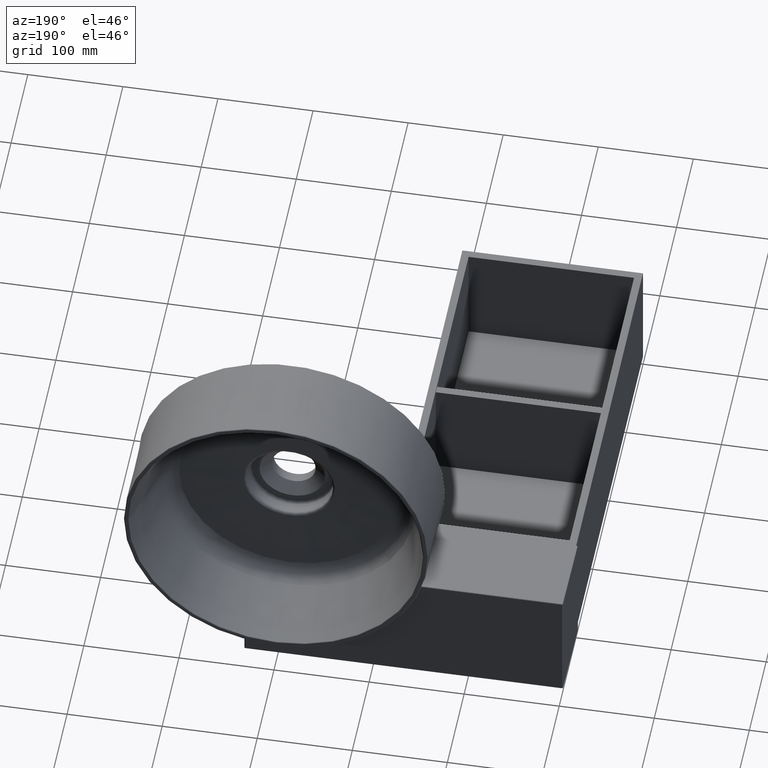
[diagram: clean part render]
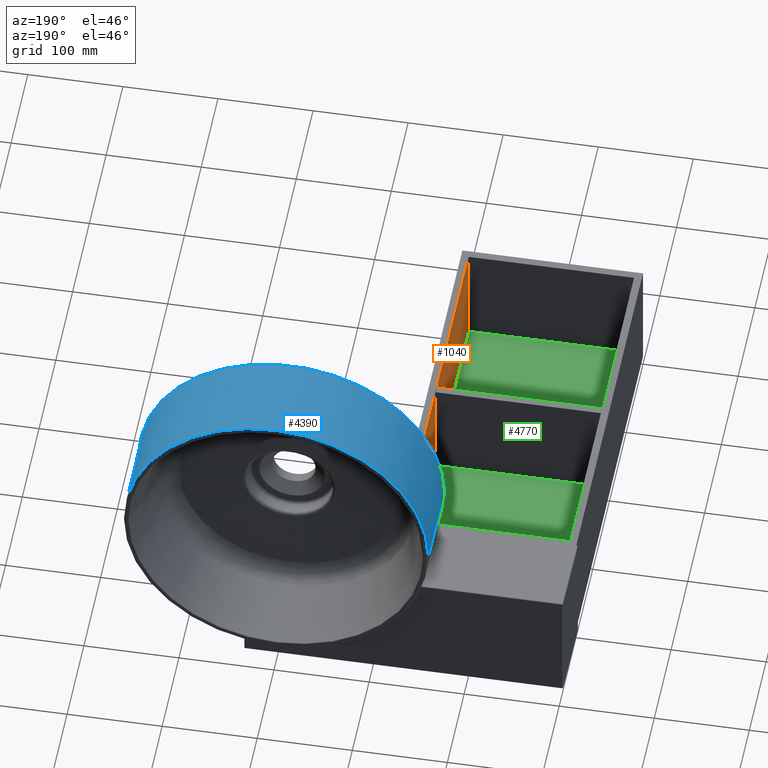
[diagram: same view with three faces highlighted in distinct colors, each labeled with its STEP entity id]
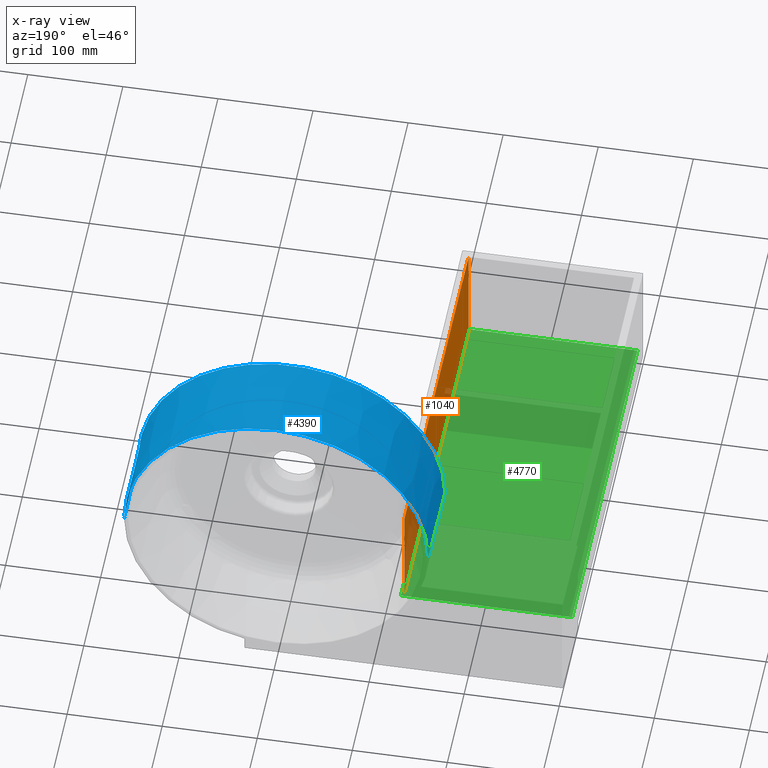
[diagram: x-ray of the same camera — body ghosted, the three highlighted faces saturated]
A machine part, auxiliary view with three faces highlighted in distinct colors.
The next image is the same camera in x-ray (body ghosted, the three faces saturated) — at least one of them is partly hidden behind the body in this view.
Their STEP definitions:

[orange] entity #1040 — the highlighted planar face has unit normal (1, 0, -0).
#10 = VECTOR ( 'NONE', #436, 1000.000000000000000 ) ;
#204 = CARTESIAN_POINT ( 'NONE',  ( 182.0000000000000284, 524.2577965360725329, 0.0000000000000000000 ) ) ;
#344 = CARTESIAN_POINT ( 'NONE',  ( 182.0000000000000000, 392.0000000000000568, -124.0000000000000142 ) ) ;
#436 = DIRECTION ( 'NONE',  ( 2.238352872228138170E-16, 0.0000000000000000000, 1.000000000000000000 ) ) ;
#529 = EDGE_LOOP ( 'NONE', ( #3721, #1677, #3928, #3893 ) ) ;
#686 = DIRECTION ( 'NONE',  ( 1.000000000000000000, 0.0000000000000000000, -2.238352872228138170E-16 ) ) ;
#950 = EDGE_CURVE ( 'NONE', #1238, #3540, #4840, .T. ) ;
#1038 = CARTESIAN_POINT ( 'NONE',  ( 182.0000000000000000, 4.000000000000000000, -110.9999999999999858 ) ) ;
#1040 = ADVANCED_FACE ( 'NONE', ( #4475 ), #2892, .F. ) ;
#1111 = CARTESIAN_POINT ( 'NONE',  ( 182.0000000000000000, 524.2577965360725329, -124.0000000000000142 ) ) ;
#1228 = LINE ( 'NONE', #2765, #10 ) ;
#1238 = VERTEX_POINT ( 'NONE', #3577 ) ;
#1491 = CARTESIAN_POINT ( 'NONE',  ( 182.0000000000000000, 392.0000000000000000, -110.9999999999999858 ) ) ;
#1677 = ORIENTED_EDGE ( 'NONE', *, *, #950, .F. ) ;
#1780 = EDGE_CURVE ( 'NONE', #3398, #4079, #2895, .T. ) ;
#1876 = VECTOR ( 'NONE', #4355, 1000.000000000000000 ) ;
#2210 = LINE ( 'NONE', #344, #4010 ) ;
#2227 = DIRECTION ( 'NONE',  ( -2.238352872228138170E-16, 0.0000000000000000000, -1.000000000000000000 ) ) ;
#2457 = CARTESIAN_POINT ( 'NONE',  ( 182.0000000000000284, 8.000000000000007105, 0.0000000000000000000 ) ) ;
#2765 = CARTESIAN_POINT ( 'NONE',  ( 182.0000000000000000, 8.000000000000007105, -124.0000000000000142 ) ) ;
#2844 = CARTESIAN_POINT ( 'NONE',  ( 182.0000000000000284, 392.0000000000000568, 0.0000000000000000000 ) ) ;
#2892 = PLANE ( 'NONE',  #4461 ) ;
#2895 = LINE ( 'NONE', #204, #1876 ) ;
#3222 = EDGE_CURVE ( 'NONE', #3398, #3540, #2210, .T. ) ;
#3398 = VERTEX_POINT ( 'NONE', #2844 ) ;
#3540 = VERTEX_POINT ( 'NONE', #1491 ) ;
#3577 = CARTESIAN_POINT ( 'NONE',  ( 182.0000000000000000, 8.000000000000010658, -110.9999999999999858 ) ) ;
#3682 = EDGE_CURVE ( 'NONE', #1238, #4079, #1228, .T. ) ;
#3721 = ORIENTED_EDGE ( 'NONE', *, *, #3222, .T. ) ;
#3759 = DIRECTION ( 'NONE',  ( -2.238352872228138170E-16, 0.0000000000000000000, -1.000000000000000000 ) ) ;
#3893 = ORIENTED_EDGE ( 'NONE', *, *, #1780, .F. ) ;
#3928 = ORIENTED_EDGE ( 'NONE', *, *, #3682, .T. ) ;
#3985 = VECTOR ( 'NONE', #4871, 1000.000000000000000 ) ;
#4010 = VECTOR ( 'NONE', #3759, 1000.000000000000000 ) ;
#4079 = VERTEX_POINT ( 'NONE', #2457 ) ;
#4355 = DIRECTION ( 'NONE',  ( -0.0000000000000000000, -1.000000000000000000, -0.0000000000000000000 ) ) ;
#4461 = AXIS2_PLACEMENT_3D ( 'NONE', #1111, #686, #2227 ) ;
#4475 = FACE_OUTER_BOUND ( 'NONE', #529, .T. ) ;
#4840 = LINE ( 'NONE', #1038, #3985 ) ;
#4871 = DIRECTION ( 'NONE',  ( 0.0000000000000000000, 1.000000000000000000, 0.0000000000000000000 ) ) ;

[blue] entity #4390 — the highlighted conical surface has half-angle 0.5 deg.
#369 = DIRECTION ( 'NONE',  ( -1.000000000000000000, 0.0000000000000000000, 0.0000000000000000000 ) ) ;
#398 = CARTESIAN_POINT ( 'NONE',  ( 138.7417837622145953, 494.0086265354983652, 55.99999999999999289 ) ) ;
#590 = ORIENTED_EDGE ( 'NONE', *, *, #3571, .F. ) ;
#592 = CONICAL_SURFACE ( 'NONE', #1144, 159.9999999999999432, 0.008726646259963988933 ) ;
#736 = VECTOR ( 'NONE', #4293, 1000.000000000000227 ) ;
#798 = CIRCLE ( 'NONE', #4642, 160.8160002160959436 ) ;
#1010 = CARTESIAN_POINT ( 'NONE',  ( 458.7417837622145385, 494.0086265354983652, 55.99999999999997158 ) ) ;
#1144 = AXIS2_PLACEMENT_3D ( 'NONE', #3712, #1945, #369 ) ;
#1520 = DIRECTION ( 'NONE',  ( -1.214623636765614367E-16, -1.000000000000000000, -0.0000000000000000000 ) ) ;
#1821 = VERTEX_POINT ( 'NONE', #3611 ) ;
#1945 = DIRECTION ( 'NONE',  ( -1.214623636765614367E-16, -1.000000000000000000, 0.0000000000000000000 ) ) ;
#2219 = ORIENTED_EDGE ( 'NONE', *, *, #3185, .T. ) ;
#2272 = CARTESIAN_POINT ( 'NONE',  ( 458.7417837622145385, 494.0086265354983652, 55.99999999999997158 ) ) ;
#2330 = EDGE_LOOP ( 'NONE', ( #2594, #2219, #4766, #590 ) ) ;
#2385 = CARTESIAN_POINT ( 'NONE',  ( 459.5577839783105105, 400.5042632677491952, 55.99999999999999289 ) ) ;
#2416 = EDGE_CURVE ( 'NONE', #4584, #2443, #3051, .T. ) ;
#2443 = VERTEX_POINT ( 'NONE', #2385 ) ;
#2594 = ORIENTED_EDGE ( 'NONE', *, *, #2416, .F. ) ;
#2614 = DIRECTION ( 'NONE',  ( 1.000000000000000000, 0.0000000000000000000, 0.0000000000000000000 ) ) ;
#2767 = CARTESIAN_POINT ( 'NONE',  ( 138.7417837622145953, 494.0086265354983652, 55.99999999999999289 ) ) ;
#2826 = CIRCLE ( 'NONE', #3849, 159.9999999999999716 ) ;
#2898 = VECTOR ( 'NONE', #3745, 1000.000000000000227 ) ;
#2991 = CARTESIAN_POINT ( 'NONE',  ( 298.7417837622145385, 494.0086265354983652, 55.99999999999999289 ) ) ;
#3051 = LINE ( 'NONE', #2272, #2898 ) ;
#3185 = EDGE_CURVE ( 'NONE', #4584, #4421, #2826, .T. ) ;
#3525 = LINE ( 'NONE', #2767, #736 ) ;
#3571 = EDGE_CURVE ( 'NONE', #2443, #1821, #798, .T. ) ;
#3611 = CARTESIAN_POINT ( 'NONE',  ( 137.9257835461185948, 400.5042632677492520, 55.99999999999997158 ) ) ;
#3712 = CARTESIAN_POINT ( 'NONE',  ( 298.7417837622145385, 494.0086265354983652, 55.99999999999999289 ) ) ;
#3745 = DIRECTION ( 'NONE',  ( 0.008726535498366154442, -0.9999619230641713097, -1.068692376572001036E-18 ) ) ;
#3786 = FACE_OUTER_BOUND ( 'NONE', #2330, .T. ) ;
#3849 = AXIS2_PLACEMENT_3D ( 'NONE', #2991, #1520, #4127 ) ;
#4127 = DIRECTION ( 'NONE',  ( 1.000000000000000000, 0.0000000000000000000, 0.0000000000000000000 ) ) ;
#4145 = DIRECTION ( 'NONE',  ( -1.214623636765614367E-16, -1.000000000000000000, -0.0000000000000000000 ) ) ;
#4293 = DIRECTION ( 'NONE',  ( -0.008726535498366397303, -0.9999619230641713097, 0.0000000000000000000 ) ) ;
#4390 = ADVANCED_FACE ( 'NONE', ( #3786 ), #592, .T. ) ;
#4421 = VERTEX_POINT ( 'NONE', #398 ) ;
#4584 = VERTEX_POINT ( 'NONE', #1010 ) ;
#4642 = AXIS2_PLACEMENT_3D ( 'NONE', #4837, #4145, #2614 ) ;
#4766 = ORIENTED_EDGE ( 'NONE', *, *, #4820, .T. ) ;
#4820 = EDGE_CURVE ( 'NONE', #4421, #1821, #3525, .T. ) ;
#4837 = CARTESIAN_POINT ( 'NONE',  ( 298.7417837622145385, 400.5042632677491952, 55.99999999999999289 ) ) ;

[green] entity #4770 — the highlighted planar face has unit normal (0, 0, -1).
#199 = CARTESIAN_POINT ( 'NONE',  ( 185.0000000000000000, 5.000000000000001776, -110.9999999999999858 ) ) ;
#534 = ORIENTED_EDGE ( 'NONE', *, *, #3652, .F. ) ;
#667 = LINE ( 'NONE', #1016, #3197 ) ;
#694 = CARTESIAN_POINT ( 'NONE',  ( 5.000000000000004441, 5.000000000000001776, -110.9999999999999858 ) ) ;
#796 = ORIENTED_EDGE ( 'NONE', *, *, #1729, .T. ) ;
#802 = CARTESIAN_POINT ( 'NONE',  ( 5.000000000000004441, 394.9999000000000251, -110.9999999999999858 ) ) ;
#926 = VERTEX_POINT ( 'NONE', #2206 ) ;
#1016 = CARTESIAN_POINT ( 'NONE',  ( 5.000000000000004441, 576.1775900728833903, -110.9999999999999858 ) ) ;
#1183 = CARTESIAN_POINT ( 'NONE',  ( 5.000000000000004441, 576.1775900728833903, -110.9999999999999858 ) ) ;
#1351 = EDGE_CURVE ( 'NONE', #1999, #4444, #3491, .T. ) ;
#1433 = LINE ( 'NONE', #694, #1809 ) ;
#1537 = FACE_OUTER_BOUND ( 'NONE', #2899, .T. ) ;
#1656 = VECTOR ( 'NONE', #2346, 1000.000000000000000 ) ;
#1729 = EDGE_CURVE ( 'NONE', #2307, #926, #667, .T. ) ;
#1809 = VECTOR ( 'NONE', #4808, 1000.000000000000000 ) ;
#1966 = DIRECTION ( 'NONE',  ( -1.000000000000000000, 0.0000000000000000000, -0.0000000000000000000 ) ) ;
#1999 = VERTEX_POINT ( 'NONE', #3229 ) ;
#2206 = CARTESIAN_POINT ( 'NONE',  ( 5.000000000000004441, 5.000000000000001776, -110.9999999999999858 ) ) ;
#2299 = LINE ( 'NONE', #4587, #1656 ) ;
#2307 = VERTEX_POINT ( 'NONE', #802 ) ;
#2346 = DIRECTION ( 'NONE',  ( 1.000000000000000000, -0.0000000000000000000, 0.0000000000000000000 ) ) ;
#2394 = DIRECTION ( 'NONE',  ( 0.0000000000000000000, 0.0000000000000000000, -1.000000000000000000 ) ) ;
#2579 = EDGE_CURVE ( 'NONE', #926, #4444, #1433, .T. ) ;
#2598 = ORIENTED_EDGE ( 'NONE', *, *, #2579, .T. ) ;
#2779 = AXIS2_PLACEMENT_3D ( 'NONE', #1183, #2394, #1966 ) ;
#2899 = EDGE_LOOP ( 'NONE', ( #534, #796, #2598, #4105 ) ) ;
#3197 = VECTOR ( 'NONE', #4698, 1000.000000000000000 ) ;
#3229 = CARTESIAN_POINT ( 'NONE',  ( 185.0000000000000000, 394.9999000000000251, -110.9999999999999858 ) ) ;
#3491 = LINE ( 'NONE', #4631, #4782 ) ;
#3652 = EDGE_CURVE ( 'NONE', #2307, #1999, #2299, .T. ) ;
#4105 = ORIENTED_EDGE ( 'NONE', *, *, #1351, .F. ) ;
#4264 = DIRECTION ( 'NONE',  ( -0.0000000000000000000, -1.000000000000000000, -0.0000000000000000000 ) ) ;
#4444 = VERTEX_POINT ( 'NONE', #199 ) ;
#4540 = PLANE ( 'NONE',  #2779 ) ;
#4587 = CARTESIAN_POINT ( 'NONE',  ( 5.000000000000004441, 394.9999000000000251, -110.9999999999999858 ) ) ;
#4631 = CARTESIAN_POINT ( 'NONE',  ( 185.0000000000000000, 576.1775900728833903, -110.9999999999999858 ) ) ;
#4698 = DIRECTION ( 'NONE',  ( -0.0000000000000000000, -1.000000000000000000, -0.0000000000000000000 ) ) ;
#4770 = ADVANCED_FACE ( 'NONE', ( #1537 ), #4540, .F. ) ;
#4782 = VECTOR ( 'NONE', #4264, 1000.000000000000000 ) ;
#4808 = DIRECTION ( 'NONE',  ( 1.000000000000000000, 0.0000000000000000000, 0.0000000000000000000 ) ) ;